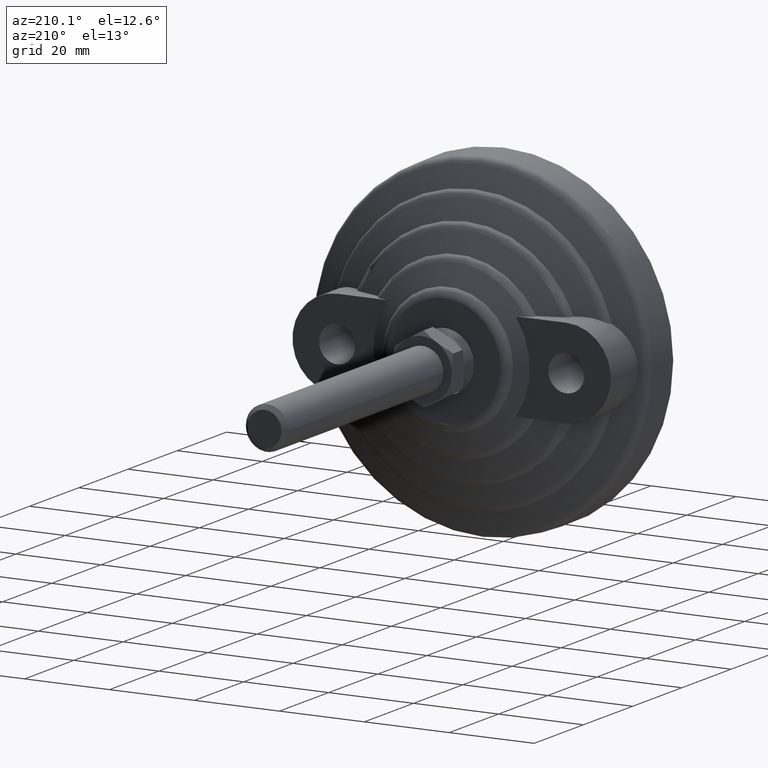
[diagram: clean part render]
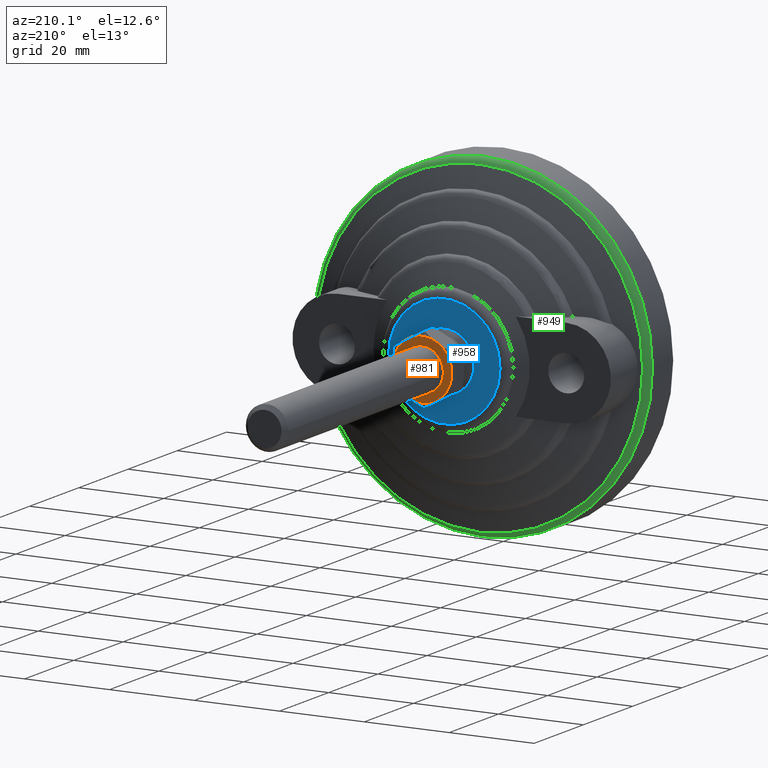
[diagram: same view with three faces highlighted in distinct colors, each labeled with its STEP entity id]
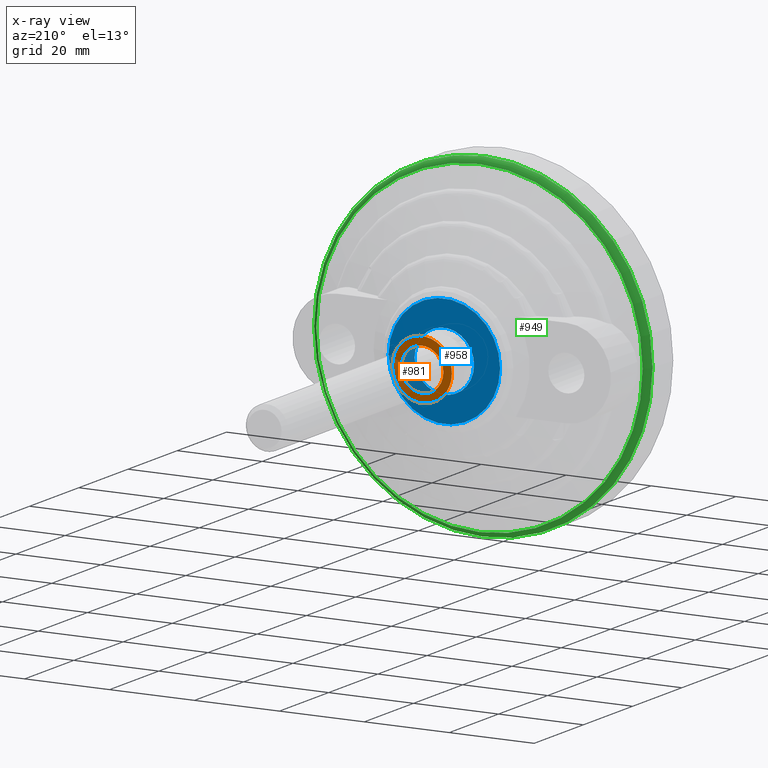
[diagram: x-ray of the same camera — body ghosted, the three highlighted faces saturated]
A machine part, auxiliary view with three faces highlighted in distinct colors.
The next image is the same camera in x-ray (body ghosted, the three faces saturated) — at least one of them is partly hidden behind the body in this view.
Their STEP definitions:

[orange] entity #981 — the highlighted planar face has unit normal (-0, 1, 0).
#97=FACE_BOUND('',#250,.T.);
#115=PLANE('',#1165);
#189=FACE_OUTER_BOUND('',#249,.T.);
#249=EDGE_LOOP('',(#897,#898,#899,#900,#901,#902));
#250=EDGE_LOOP('',(#903,#904));
#355=CIRCLE('',#1133,5.00000000000001);
#356=CIRCLE('',#1134,5.00000000000001);
#357=CIRCLE('',#1142,6.99999999999999);
#358=CIRCLE('',#1144,6.99999999999999);
#359=CIRCLE('',#1146,6.99999999999999);
#360=CIRCLE('',#1148,6.99999999999999);
#361=CIRCLE('',#1150,6.99999999999999);
#362=CIRCLE('',#1152,6.99999999999999);
#444=VERTEX_POINT('',#1859);
#445=VERTEX_POINT('',#1860);
#447=VERTEX_POINT('',#1866);
#453=VERTEX_POINT('',#1887);
#458=VERTEX_POINT('',#1907);
#460=VERTEX_POINT('',#1922);
#464=VERTEX_POINT('',#1940);
#468=VERTEX_POINT('',#1958);
#574=EDGE_CURVE('',#444,#445,#355,.T.);
#575=EDGE_CURVE('',#445,#444,#356,.T.);
#607=EDGE_CURVE('',#464,#460,#357,.T.);
#608=EDGE_CURVE('',#468,#464,#358,.T.);
#609=EDGE_CURVE('',#447,#468,#359,.T.);
#610=EDGE_CURVE('',#458,#447,#360,.T.);
#611=EDGE_CURVE('',#453,#458,#361,.T.);
#612=EDGE_CURVE('',#460,#453,#362,.T.);
#897=ORIENTED_EDGE('',*,*,#608,.F.);
#898=ORIENTED_EDGE('',*,*,#609,.F.);
#899=ORIENTED_EDGE('',*,*,#610,.F.);
#900=ORIENTED_EDGE('',*,*,#611,.F.);
#901=ORIENTED_EDGE('',*,*,#612,.F.);
#902=ORIENTED_EDGE('',*,*,#607,.F.);
#903=ORIENTED_EDGE('',*,*,#574,.T.);
#904=ORIENTED_EDGE('',*,*,#575,.T.);
#981=ADVANCED_FACE('',(#189,#97),#115,.T.);
#1133=AXIS2_PLACEMENT_3D('',#1861,#1366,#1367);
#1134=AXIS2_PLACEMENT_3D('',#1862,#1368,#1369);
#1142=AXIS2_PLACEMENT_3D('',#1973,#1391,#1392);
#1144=AXIS2_PLACEMENT_3D('',#1975,#1395,#1396);
#1146=AXIS2_PLACEMENT_3D('',#1977,#1399,#1400);
#1148=AXIS2_PLACEMENT_3D('',#1979,#1403,#1404);
#1150=AXIS2_PLACEMENT_3D('',#1981,#1407,#1408);
#1152=AXIS2_PLACEMENT_3D('',#1983,#1411,#1412);
#1165=AXIS2_PLACEMENT_3D('',#1996,#1437,#1438);
#1366=DIRECTION('center_axis',(3.13558628617819E-16,-1.,0.));
#1367=DIRECTION('ref_axis',(1.,3.13456360540168E-16,0.));
#1368=DIRECTION('center_axis',(3.13558628617819E-16,-1.,0.));
#1369=DIRECTION('ref_axis',(1.,3.13456360540168E-16,0.));
#1391=DIRECTION('center_axis',(3.13558628617819E-16,-1.,0.));
#1392=DIRECTION('ref_axis',(1.,3.13456360540168E-16,0.));
#1395=DIRECTION('center_axis',(3.13558628617819E-16,-1.,0.));
#1396=DIRECTION('ref_axis',(1.,3.13456360540168E-16,0.));
#1399=DIRECTION('center_axis',(3.13558628617819E-16,-1.,0.));
#1400=DIRECTION('ref_axis',(1.,3.13456360540168E-16,0.));
#1403=DIRECTION('center_axis',(3.13558628617819E-16,-1.,0.));
#1404=DIRECTION('ref_axis',(1.,3.13456360540168E-16,0.));
#1407=DIRECTION('center_axis',(3.13558628617819E-16,-1.,0.));
#1408=DIRECTION('ref_axis',(1.,3.13456360540168E-16,0.));
#1411=DIRECTION('center_axis',(3.13558628617819E-16,-1.,0.));
#1412=DIRECTION('ref_axis',(1.,3.13456360540168E-16,0.));
#1437=DIRECTION('center_axis',(-3.13558628617819E-16,1.,0.));
#1438=DIRECTION('ref_axis',(0.,0.,1.));
#1859=CARTESIAN_POINT('',(5.00000000000002,33.,0.));
#1860=CARTESIAN_POINT('',(-5.,33.,-6.12323399573677E-16));
#1861=CARTESIAN_POINT('Origin',(7.96062576449065E-15,33.,0.));
#1862=CARTESIAN_POINT('Origin',(7.96062576449065E-15,33.,0.));
#1866=CARTESIAN_POINT('',(3.50000000000003,33.,-6.06217782649108));
#1887=CARTESIAN_POINT('',(-7.,33.,0.));
#1907=CARTESIAN_POINT('',(-3.50000000000002,33.,-6.06217782649109));
#1922=CARTESIAN_POINT('',(-3.50000000000002,33.,6.06217782649109));
#1940=CARTESIAN_POINT('',(3.50000000000003,33.,6.06217782649108));
#1958=CARTESIAN_POINT('',(7.,33.,0.));
#1973=CARTESIAN_POINT('Origin',(7.96062576449066E-15,33.,0.));
#1975=CARTESIAN_POINT('Origin',(7.96062576449066E-15,33.,0.));
#1977=CARTESIAN_POINT('Origin',(7.96062576449066E-15,33.,0.));
#1979=CARTESIAN_POINT('Origin',(7.96062576449066E-15,33.,0.));
#1981=CARTESIAN_POINT('Origin',(7.96062576449066E-15,33.,0.));
#1983=CARTESIAN_POINT('Origin',(7.96062576449066E-15,33.,0.));
#1996=CARTESIAN_POINT('Origin',(6.00000000000001,33.,0.));

[blue] entity #958 — the highlighted planar face has unit normal (0, 1, 0).
#94=FACE_BOUND('',#224,.T.);
#106=PLANE('',#1124);
#166=FACE_OUTER_BOUND('',#223,.T.);
#223=EDGE_LOOP('',(#804,#805));
#224=EDGE_LOOP('',(#806));
#304=CIRCLE('',#1049,7.);
#350=CIRCLE('',#1122,13.13);
#351=CIRCLE('',#1123,13.13);
#374=VERTEX_POINT('',#1463);
#439=VERTEX_POINT('',#1841);
#440=VERTEX_POINT('',#1842);
#476=EDGE_CURVE('',#374,#374,#304,.T.);
#567=EDGE_CURVE('',#439,#440,#350,.T.);
#568=EDGE_CURVE('',#440,#439,#351,.T.);
#804=ORIENTED_EDGE('',*,*,#567,.T.);
#805=ORIENTED_EDGE('',*,*,#568,.T.);
#806=ORIENTED_EDGE('',*,*,#476,.T.);
#958=ADVANCED_FACE('',(#166,#94),#106,.T.);
#1049=AXIS2_PLACEMENT_3D('',#1464,#1182,#1183);
#1122=AXIS2_PLACEMENT_3D('',#1843,#1342,#1343);
#1123=AXIS2_PLACEMENT_3D('',#1844,#1344,#1345);
#1124=AXIS2_PLACEMENT_3D('',#1846,#1347,#1348);
#1182=DIRECTION('center_axis',(0.,-1.,0.));
#1183=DIRECTION('ref_axis',(1.,0.,0.));
#1342=DIRECTION('center_axis',(0.,1.,0.));
#1343=DIRECTION('ref_axis',(-1.,0.,0.));
#1344=DIRECTION('center_axis',(0.,1.,0.));
#1345=DIRECTION('ref_axis',(-1.,0.,0.));
#1347=DIRECTION('center_axis',(0.,1.,0.));
#1348=DIRECTION('ref_axis',(0.,0.,1.));
#1463=CARTESIAN_POINT('',(-7.,24.,-8.57252759403147E-16));
#1464=CARTESIAN_POINT('Origin',(0.,24.,0.));
#1841=CARTESIAN_POINT('',(-13.13,24.,0.));
#1842=CARTESIAN_POINT('',(13.13,24.,-1.60796124728047E-15));
#1843=CARTESIAN_POINT('Origin',(0.,24.,0.));
#1844=CARTESIAN_POINT('Origin',(0.,24.,0.));
#1846=CARTESIAN_POINT('Origin',(-6.565,24.,0.));

[green] entity #949 — the highlighted toroidal blend (fillet) surface has major radius 37.7144 mm and minor (blend) radius 2.02 mm.
#30=TOROIDAL_SURFACE('',#1100,37.7143687837667,2.01999999999769);
#157=FACE_OUTER_BOUND('',#214,.T.);
#214=EDGE_LOOP('',(#749,#750,#751,#752,#753,#754,#755,#756));
#332=CIRCLE('',#1095,39.731330475878);
#333=CIRCLE('',#1096,39.731330475878);
#334=CIRCLE('',#1097,39.731330475878);
#337=CIRCLE('',#1101,38.429103158151);
#338=CIRCLE('',#1102,38.429103158151);
#339=CIRCLE('',#1103,2.01999999999769);
#340=CIRCLE('',#1104,38.429103158151);
#428=VERTEX_POINT('',#1801);
#429=VERTEX_POINT('',#1802);
#430=VERTEX_POINT('',#1804);
#433=VERTEX_POINT('',#1813);
#434=VERTEX_POINT('',#1814);
#435=VERTEX_POINT('',#1816);
#547=EDGE_CURVE('',#428,#429,#332,.T.);
#548=EDGE_CURVE('',#430,#428,#333,.T.);
#549=EDGE_CURVE('',#429,#430,#334,.T.);
#553=EDGE_CURVE('',#433,#434,#337,.T.);
#554=EDGE_CURVE('',#435,#433,#338,.T.);
#555=EDGE_CURVE('',#435,#430,#339,.T.);
#556=EDGE_CURVE('',#434,#435,#340,.T.);
#749=ORIENTED_EDGE('',*,*,#553,.F.);
#750=ORIENTED_EDGE('',*,*,#554,.F.);
#751=ORIENTED_EDGE('',*,*,#555,.T.);
#752=ORIENTED_EDGE('',*,*,#548,.T.);
#753=ORIENTED_EDGE('',*,*,#547,.T.);
#754=ORIENTED_EDGE('',*,*,#549,.T.);
#755=ORIENTED_EDGE('',*,*,#555,.F.);
#756=ORIENTED_EDGE('',*,*,#556,.F.);
#949=ADVANCED_FACE('',(#157),#30,.T.);
#1095=AXIS2_PLACEMENT_3D('',#1803,#1286,#1287);
#1096=AXIS2_PLACEMENT_3D('',#1805,#1288,#1289);
#1097=AXIS2_PLACEMENT_3D('',#1806,#1290,#1291);
#1100=AXIS2_PLACEMENT_3D('',#1812,#1297,#1298);
#1101=AXIS2_PLACEMENT_3D('',#1815,#1299,#1300);
#1102=AXIS2_PLACEMENT_3D('',#1817,#1301,#1302);
#1103=AXIS2_PLACEMENT_3D('',#1818,#1303,#1304);
#1104=AXIS2_PLACEMENT_3D('',#1819,#1305,#1306);
#1286=DIRECTION('center_axis',(0.,1.,0.));
#1287=DIRECTION('ref_axis',(-1.,0.,0.));
#1288=DIRECTION('center_axis',(0.,1.,0.));
#1289=DIRECTION('ref_axis',(-1.,0.,0.));
#1290=DIRECTION('center_axis',(0.,1.,0.));
#1291=DIRECTION('ref_axis',(-1.,0.,0.));
#1297=DIRECTION('center_axis',(0.,1.,0.));
#1298=DIRECTION('ref_axis',(0.,0.,1.));
#1299=DIRECTION('center_axis',(0.,1.,0.));
#1300=DIRECTION('ref_axis',(-1.,0.,0.));
#1301=DIRECTION('center_axis',(0.,1.,0.));
#1302=DIRECTION('ref_axis',(-1.,0.,0.));
#1303=DIRECTION('center_axis',(-1.,0.,1.22464679914735E-16));
#1304=DIRECTION('ref_axis',(-1.22464679914735E-16,0.,-1.));
#1305=DIRECTION('center_axis',(0.,1.,0.));
#1306=DIRECTION('ref_axis',(-1.,0.,0.));
#1801=CARTESIAN_POINT('',(-39.731330475878,7.9354916736121,0.));
#1802=CARTESIAN_POINT('',(39.731330475878,7.9354916736121,-4.86568466931497E-15));
#1803=CARTESIAN_POINT('Origin',(0.,7.9354916736121,0.));
#1804=CARTESIAN_POINT('',(-4.86568466931497E-15,7.9354916736121,-39.731330475878));
#1805=CARTESIAN_POINT('Origin',(0.,7.9354916736121,0.));
#1806=CARTESIAN_POINT('Origin',(0.,7.9354916736121,0.));
#1812=CARTESIAN_POINT('Origin',(0.,7.82474180884418,0.));
#1813=CARTESIAN_POINT('',(-38.429103158151,9.7140683486631,0.));
#1814=CARTESIAN_POINT('',(38.429103158151,9.71406834866309,-4.70620781767331E-15));
#1815=CARTESIAN_POINT('Origin',(0.,9.7140683486631,0.));
#1816=CARTESIAN_POINT('',(-4.70620781767331E-15,9.7140683486631,-38.429103158151));
#1817=CARTESIAN_POINT('Origin',(0.,9.7140683486631,0.));
#1818=CARTESIAN_POINT('Origin',(-4.61867810129027E-15,7.82474180884418,
-37.7143687837667));
#1819=CARTESIAN_POINT('Origin',(0.,9.7140683486631,0.));